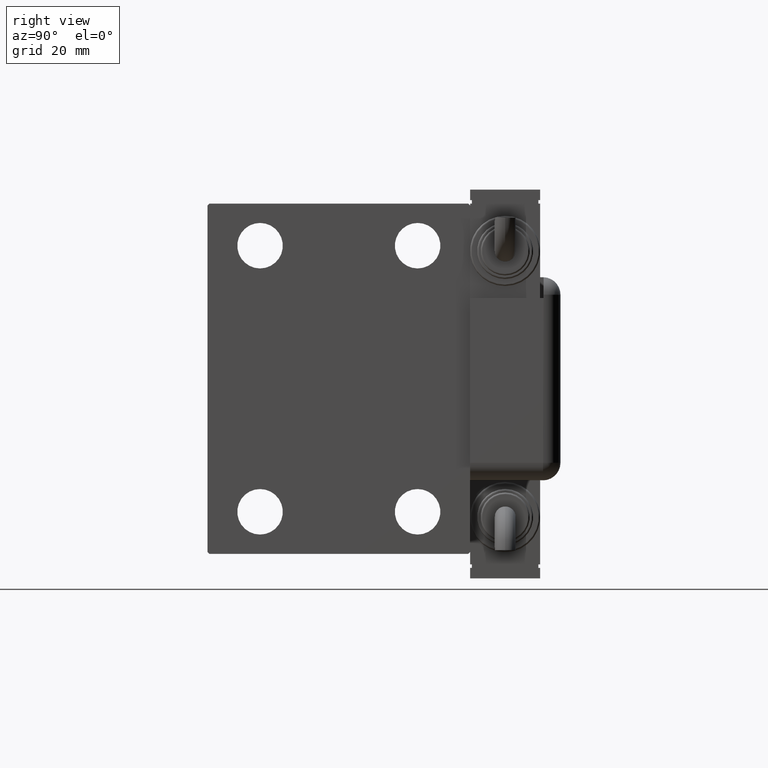
[diagram: clean part render]
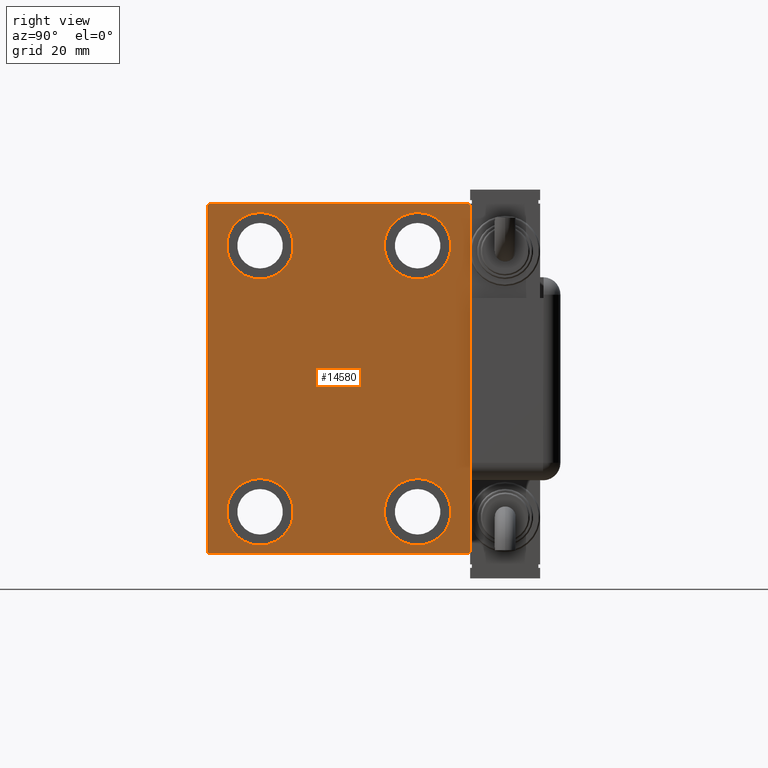
[diagram: same view with one face highlighted and labeled with its STEP entity id]
A machine part, right view. The second image highlights one B-rep face of the part: STEP entity #14580.
In plain terms, the highlighted planar face has unit normal (1, 0, 0).
Its self-contained STEP definition (entity closure, byte-faithful):
#639 = CARTESIAN_POINT ( 'NONE',  ( 93.00000000000000000, 22.49999999999999645, -47.49999999999999289 ) ) ;
#953 = DIRECTION ( 'NONE',  ( 0.000000000000000000, -1.000000000000000000, -1.850371707708594316E-16 ) ) ;
#1322 = VERTEX_POINT ( 'NONE', #34812 ) ;
#1880 = VECTOR ( 'NONE', #953, 1000.000000000000000 ) ;
#2991 = DIRECTION ( 'NONE',  ( 0.000000000000000000, 0.000000000000000000, 1.000000000000000000 ) ) ;
#3455 = AXIS2_PLACEMENT_3D ( 'NONE', #55574, #14166, #51032 ) ;
#3648 = VERTEX_POINT ( 'NONE', #29720 ) ;
#3730 = EDGE_CURVE ( 'NONE', #52757, #9986, #49588, .T. ) ;
#3933 = EDGE_LOOP ( 'NONE', ( #21906, #23147 ) ) ;
#4247 = LINE ( 'NONE', #27253, #20500 ) ;
#4455 = ORIENTED_EDGE ( 'NONE', *, *, #28451, .T. ) ;
#4556 = DIRECTION ( 'NONE',  ( 0.000000000000000000, 1.000000000000000000, 9.251858538542970348E-17 ) ) ;
#4818 = ORIENTED_EDGE ( 'NONE', *, *, #28984, .T. ) ;
#5506 = CARTESIAN_POINT ( 'NONE',  ( 93.00000000000000000, -37.50000000000000711, 49.99999999999999289 ) ) ;
#5673 = VECTOR ( 'NONE', #31023, 999.9999999999998863 ) ;
#5707 = VERTEX_POINT ( 'NONE', #29000 ) ;
#5881 = LINE ( 'NONE', #28883, #49696 ) ;
#6967 = CARTESIAN_POINT ( 'NONE',  ( 93.00000000000000000, 37.50000000000000711, -50.00000000000000000 ) ) ;
#7686 = EDGE_LOOP ( 'NONE', ( #23081, #36037 ) ) ;
#7764 = EDGE_CURVE ( 'NONE', #42850, #19203, #4247, .T. ) ;
#7930 = CARTESIAN_POINT ( 'NONE',  ( 93.00000000000000000, 37.00000000000002132, -50.00000000000000000 ) ) ;
#8213 = DIRECTION ( 'NONE',  ( -1.000000000000000000, -0.000000000000000000, -0.000000000000000000 ) ) ;
#9054 = CARTESIAN_POINT ( 'NONE',  ( 93.00000000000000000, -22.50000000000000711, -37.99999999999999289 ) ) ;
#9173 = CARTESIAN_POINT ( 'NONE',  ( 93.00000000000000000, 0.000000000000000000, 0.000000000000000000 ) ) ;
#9427 = VECTOR ( 'NONE', #4556, 1000.000000000000000 ) ;
#9455 = CIRCLE ( 'NONE', #48099, 9.500000000000001776 ) ;
#9986 = VERTEX_POINT ( 'NONE', #58167 ) ;
#10884 = DIRECTION ( 'NONE',  ( -1.000000000000000000, -0.000000000000000000, -0.000000000000000000 ) ) ;
#11440 = EDGE_CURVE ( 'NONE', #5707, #19929, #51509, .T. ) ;
#11745 = CARTESIAN_POINT ( 'NONE',  ( 93.00000000000000000, -43.49999999999946709, 43.50000000000068212 ) ) ;
#12464 = EDGE_CURVE ( 'NONE', #3648, #47908, #47680, .T. ) ;
#13708 = DIRECTION ( 'NONE',  ( 0.000000000000000000, 0.000000000000000000, -1.000000000000000000 ) ) ;
#14166 = DIRECTION ( 'NONE',  ( -1.000000000000000000, -0.000000000000000000, -0.000000000000000000 ) ) ;
#14580 = ADVANCED_FACE ( 'NONE', ( #26766, #40381, #31292, #45482, #17963 ), #31002, .T. ) ;
#14662 = DIRECTION ( 'NONE',  ( -0.000000000000000000, -0.7071067811865525687, 0.7071067811865425767 ) ) ;
#15188 = VERTEX_POINT ( 'NONE', #42303 ) ;
#16105 = VERTEX_POINT ( 'NONE', #35925 ) ;
#16174 = CIRCLE ( 'NONE', #49938, 9.500000000000001776 ) ;
#16250 = CARTESIAN_POINT ( 'NONE',  ( 93.00000000000000000, 22.49999999999999645, -37.99999999999999289 ) ) ;
#16697 = ORIENTED_EDGE ( 'NONE', *, *, #24010, .T. ) ;
#17498 = VERTEX_POINT ( 'NONE', #51839 ) ;
#17508 = EDGE_CURVE ( 'NONE', #18543, #1322, #5881, .T. ) ;
#17763 = EDGE_CURVE ( 'NONE', #31846, #42179, #27043, .T. ) ;
#17963 = FACE_OUTER_BOUND ( 'NONE', #58094, .T. ) ;
#18114 = ORIENTED_EDGE ( 'NONE', *, *, #7764, .T. ) ;
#18146 = CARTESIAN_POINT ( 'NONE',  ( 93.00000000000000000, 22.50000000000000355, 37.99999999999999289 ) ) ;
#18543 = VERTEX_POINT ( 'NONE', #36844 ) ;
#18745 = DIRECTION ( 'NONE',  ( -1.000000000000000000, -0.000000000000000000, -0.000000000000000000 ) ) ;
#18786 = EDGE_CURVE ( 'NONE', #9986, #52757, #31419, .T. ) ;
#19203 = VERTEX_POINT ( 'NONE', #19965 ) ;
#19418 = DIRECTION ( 'NONE',  ( 0.000000000000000000, 0.000000000000000000, -1.000000000000000000 ) ) ;
#19482 = EDGE_CURVE ( 'NONE', #19929, #5707, #38256, .T. ) ;
#19929 = VERTEX_POINT ( 'NONE', #56997 ) ;
#19965 = CARTESIAN_POINT ( 'NONE',  ( 93.00000000000000000, 37.50000000000000711, -49.50000000000001421 ) ) ;
#20500 = VECTOR ( 'NONE', #26683, 1000.000000000000114 ) ;
#21906 = ORIENTED_EDGE ( 'NONE', *, *, #57429, .T. ) ;
#22718 = CARTESIAN_POINT ( 'NONE',  ( 93.00000000000000000, 22.49999999999999645, -37.99999999999999289 ) ) ;
#22959 = DIRECTION ( 'NONE',  ( -1.000000000000000000, -0.000000000000000000, -0.000000000000000000 ) ) ;
#23081 = ORIENTED_EDGE ( 'NONE', *, *, #11440, .T. ) ;
#23147 = ORIENTED_EDGE ( 'NONE', *, *, #55111, .T. ) ;
#23617 = LINE ( 'NONE', #59592, #9427 ) ;
#23669 = LINE ( 'NONE', #5506, #43323 ) ;
#24010 = EDGE_CURVE ( 'NONE', #42179, #42850, #23617, .T. ) ;
#24126 = AXIS2_PLACEMENT_3D ( 'NONE', #18146, #18745, #49597 ) ;
#24132 = CARTESIAN_POINT ( 'NONE',  ( 93.00000000000000000, -37.50000000000000711, -49.50000000000002132 ) ) ;
#24841 = LINE ( 'NONE', #6967, #41113 ) ;
#26156 = CARTESIAN_POINT ( 'NONE',  ( 93.00000000000000000, -43.49999999999950262, -43.50000000000070344 ) ) ;
#26683 = DIRECTION ( 'NONE',  ( -0.000000000000000000, 0.7071067811865474617, 0.7071067811865474617 ) ) ;
#26766 = FACE_BOUND ( 'NONE', #36254, .T. ) ;
#26829 = ORIENTED_EDGE ( 'NONE', *, *, #12464, .T. ) ;
#26922 = CARTESIAN_POINT ( 'NONE',  ( 93.00000000000000000, -22.50000000000000711, -37.99999999999999289 ) ) ;
#27043 = LINE ( 'NONE', #26156, #50636 ) ;
#27253 = CARTESIAN_POINT ( 'NONE',  ( 93.00000000000000000, 43.50000000000000711, -43.50000000000000711 ) ) ;
#28451 = EDGE_CURVE ( 'NONE', #15188, #46586, #57400, .T. ) ;
#28883 = CARTESIAN_POINT ( 'NONE',  ( 93.00000000000000000, 43.49999999999974420, 43.50000000000035527 ) ) ;
#28984 = EDGE_CURVE ( 'NONE', #1322, #15188, #47813, .T. ) ;
#29000 = CARTESIAN_POINT ( 'NONE',  ( 93.00000000000000000, -22.49999999999999645, 28.49999999999998934 ) ) ;
#29720 = CARTESIAN_POINT ( 'NONE',  ( 93.00000000000000000, 22.50000000000000355, 47.49999999999999289 ) ) ;
#30074 = EDGE_CURVE ( 'NONE', #47908, #3648, #53072, .T. ) ;
#30846 = ORIENTED_EDGE ( 'NONE', *, *, #18786, .T. ) ;
#30853 = CARTESIAN_POINT ( 'NONE',  ( 93.00000000000000000, 22.50000000000000355, 28.49999999999998934 ) ) ;
#30924 = DIRECTION ( 'NONE',  ( 0.000000000000000000, 0.000000000000000000, 1.000000000000000000 ) ) ;
#31002 = PLANE ( 'NONE',  #35279 ) ;
#31023 = DIRECTION ( 'NONE',  ( 0.000000000000000000, -0.7071067811865574537, -0.7071067811865376918 ) ) ;
#31046 = EDGE_CURVE ( 'NONE', #46586, #31846, #23669, .T. ) ;
#31292 = FACE_BOUND ( 'NONE', #54436, .T. ) ;
#31419 = CIRCLE ( 'NONE', #57474, 9.500000000000001776 ) ;
#31482 = ORIENTED_EDGE ( 'NONE', *, *, #17508, .T. ) ;
#31846 = VERTEX_POINT ( 'NONE', #24132 ) ;
#33030 = CARTESIAN_POINT ( 'NONE',  ( 93.00000000000000000, 37.49999999999999289, 50.00000000000000711 ) ) ;
#34808 = DIRECTION ( 'NONE',  ( 0.000000000000000000, -1.387778780781445676E-16, 1.000000000000000000 ) ) ;
#34812 = CARTESIAN_POINT ( 'NONE',  ( 93.00000000000000000, 37.00000000000000711, 50.00000000000000711 ) ) ;
#35279 = AXIS2_PLACEMENT_3D ( 'NONE', #9173, #50582, #13708 ) ;
#35925 = CARTESIAN_POINT ( 'NONE',  ( 93.00000000000000000, -22.50000000000000711, -28.49999999999998934 ) ) ;
#36018 = ORIENTED_EDGE ( 'NONE', *, *, #30074, .T. ) ;
#36037 = ORIENTED_EDGE ( 'NONE', *, *, #19482, .T. ) ;
#36254 = EDGE_LOOP ( 'NONE', ( #56603, #30846 ) ) ;
#36400 = DIRECTION ( 'NONE',  ( -0.000000000000000000, 0.7071067811865573427, -0.7071067811865378028 ) ) ;
#36844 = CARTESIAN_POINT ( 'NONE',  ( 93.00000000000000000, 37.49999999999999289, 49.50000000000002842 ) ) ;
#36893 = DIRECTION ( 'NONE',  ( 0.000000000000000000, 0.000000000000000000, 1.000000000000000000 ) ) ;
#37180 = DIRECTION ( 'NONE',  ( 0.000000000000000000, 0.000000000000000000, 1.000000000000000000 ) ) ;
#37841 = CARTESIAN_POINT ( 'NONE',  ( 93.00000000000000000, -37.50000000000000711, 49.49999999999997868 ) ) ;
#38256 = CIRCLE ( 'NONE', #3455, 9.500000000000001776 ) ;
#39549 = DIRECTION ( 'NONE',  ( -1.000000000000000000, -0.000000000000000000, -0.000000000000000000 ) ) ;
#40381 = FACE_BOUND ( 'NONE', #7686, .T. ) ;
#41113 = VECTOR ( 'NONE', #34808, 1000.000000000000000 ) ;
#42061 = DIRECTION ( 'NONE',  ( 0.000000000000000000, 0.000000000000000000, 1.000000000000000000 ) ) ;
#42179 = VERTEX_POINT ( 'NONE', #52831 ) ;
#42303 = CARTESIAN_POINT ( 'NONE',  ( 93.00000000000000000, -36.99999999999997868, 49.99999999999999289 ) ) ;
#42714 = ORIENTED_EDGE ( 'NONE', *, *, #17763, .T. ) ;
#42850 = VERTEX_POINT ( 'NONE', #7930 ) ;
#42903 = AXIS2_PLACEMENT_3D ( 'NONE', #56836, #10884, #42061 ) ;
#43323 = VECTOR ( 'NONE', #19418, 1000.000000000000000 ) ;
#45482 = FACE_BOUND ( 'NONE', #3933, .T. ) ;
#46586 = VERTEX_POINT ( 'NONE', #37841 ) ;
#47680 = CIRCLE ( 'NONE', #54458, 9.500000000000001776 ) ;
#47813 = LINE ( 'NONE', #33030, #1880 ) ;
#47908 = VERTEX_POINT ( 'NONE', #30853 ) ;
#48099 = AXIS2_PLACEMENT_3D ( 'NONE', #9054, #59553, #36893 ) ;
#48353 = CARTESIAN_POINT ( 'NONE',  ( 93.00000000000000000, 22.50000000000000355, 37.99999999999999289 ) ) ;
#49588 = CIRCLE ( 'NONE', #52478, 9.500000000000001776 ) ;
#49597 = DIRECTION ( 'NONE',  ( 0.000000000000000000, 0.000000000000000000, 1.000000000000000000 ) ) ;
#49696 = VECTOR ( 'NONE', #14662, 999.9999999999998863 ) ;
#49938 = AXIS2_PLACEMENT_3D ( 'NONE', #26922, #22959, #37180 ) ;
#50582 = DIRECTION ( 'NONE',  ( 1.000000000000000000, 0.000000000000000000, 0.000000000000000000 ) ) ;
#50636 = VECTOR ( 'NONE', #36400, 1000.000000000000000 ) ;
#51032 = DIRECTION ( 'NONE',  ( 0.000000000000000000, 0.000000000000000000, 1.000000000000000000 ) ) ;
#51509 = CIRCLE ( 'NONE', #42903, 9.500000000000001776 ) ;
#51839 = CARTESIAN_POINT ( 'NONE',  ( 93.00000000000000000, -22.50000000000000711, -47.49999999999999289 ) ) ;
#51885 = EDGE_CURVE ( 'NONE', #19203, #18543, #24841, .T. ) ;
#52478 = AXIS2_PLACEMENT_3D ( 'NONE', #22718, #8213, #30924 ) ;
#52757 = VERTEX_POINT ( 'NONE', #639 ) ;
#52831 = CARTESIAN_POINT ( 'NONE',  ( 93.00000000000000000, -37.00000000000000711, -50.00000000000000711 ) ) ;
#53072 = CIRCLE ( 'NONE', #24126, 9.500000000000001776 ) ;
#53476 = DIRECTION ( 'NONE',  ( -1.000000000000000000, -0.000000000000000000, -0.000000000000000000 ) ) ;
#54436 = EDGE_LOOP ( 'NONE', ( #36018, #26829 ) ) ;
#54458 = AXIS2_PLACEMENT_3D ( 'NONE', #48353, #53476, #2991 ) ;
#55111 = EDGE_CURVE ( 'NONE', #16105, #17498, #16174, .T. ) ;
#55574 = CARTESIAN_POINT ( 'NONE',  ( 93.00000000000000000, -22.49999999999999645, 37.99999999999999289 ) ) ;
#55902 = ORIENTED_EDGE ( 'NONE', *, *, #51885, .T. ) ;
#56603 = ORIENTED_EDGE ( 'NONE', *, *, #3730, .T. ) ;
#56836 = CARTESIAN_POINT ( 'NONE',  ( 93.00000000000000000, -22.49999999999999645, 37.99999999999999289 ) ) ;
#56997 = CARTESIAN_POINT ( 'NONE',  ( 93.00000000000000000, -22.49999999999999645, 47.49999999999999289 ) ) ;
#57400 = LINE ( 'NONE', #11745, #5673 ) ;
#57429 = EDGE_CURVE ( 'NONE', #17498, #16105, #9455, .T. ) ;
#57474 = AXIS2_PLACEMENT_3D ( 'NONE', #16250, #39549, #58551 ) ;
#58094 = EDGE_LOOP ( 'NONE', ( #4818, #4455, #59252, #42714, #16697, #18114, #55902, #31482 ) ) ;
#58167 = CARTESIAN_POINT ( 'NONE',  ( 93.00000000000000000, 22.49999999999999645, -28.49999999999998934 ) ) ;
#58551 = DIRECTION ( 'NONE',  ( 0.000000000000000000, 0.000000000000000000, 1.000000000000000000 ) ) ;
#59252 = ORIENTED_EDGE ( 'NONE', *, *, #31046, .T. ) ;
#59553 = DIRECTION ( 'NONE',  ( -1.000000000000000000, -0.000000000000000000, -0.000000000000000000 ) ) ;
#59592 = CARTESIAN_POINT ( 'NONE',  ( 93.00000000000000000, -37.50000000000000711, -50.00000000000000711 ) ) ;